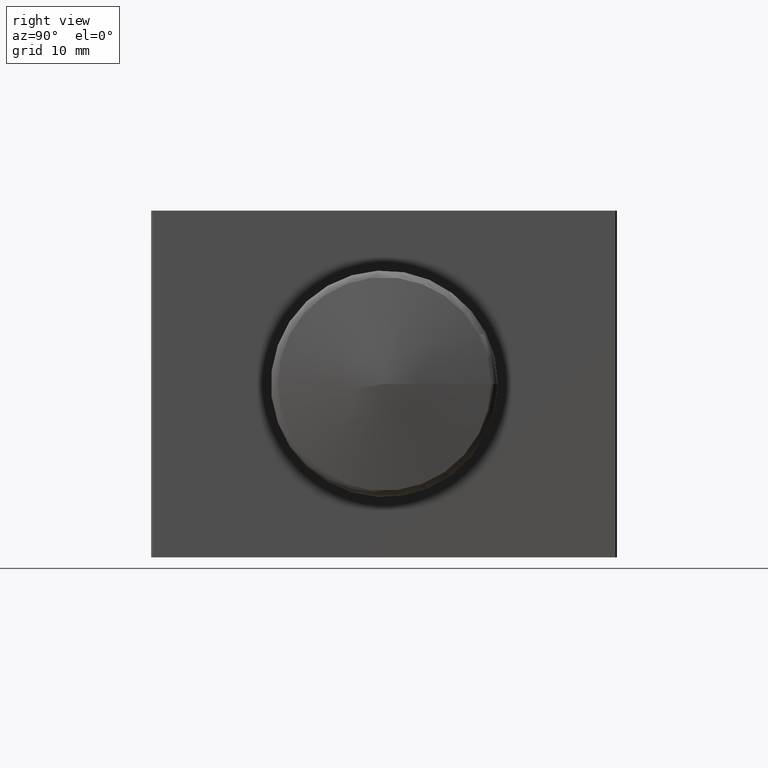
[diagram: clean part render]
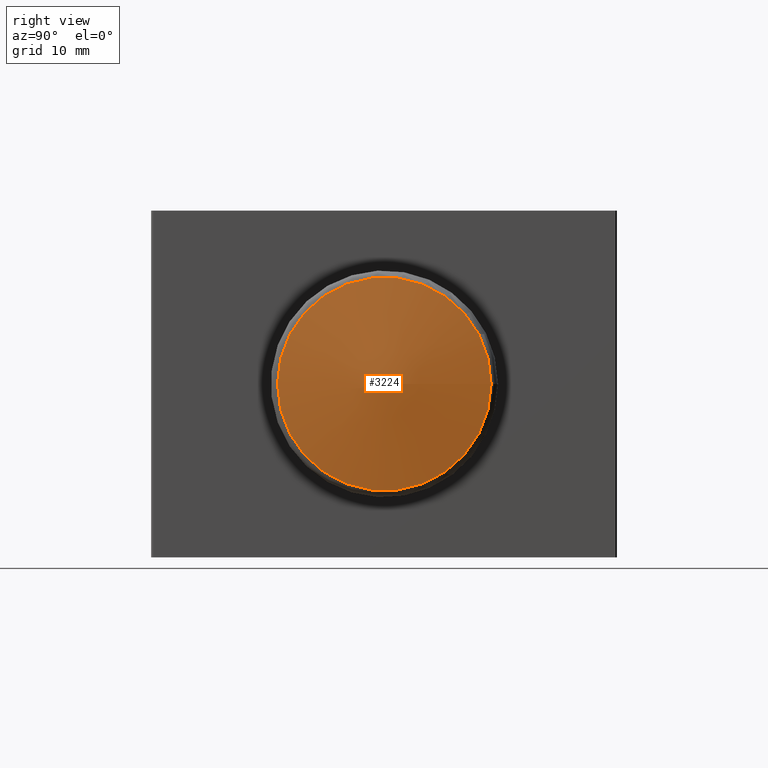
[diagram: same view with one face highlighted and labeled with its STEP entity id]
A machine part, right view. The second image highlights one B-rep face of the part: STEP entity #3224.
In plain terms, the highlighted conical surface has half-angle 82.265 deg.
Its self-contained STEP definition (entity closure, byte-faithful):
#3201=CARTESIAN_POINT('',(12.594946192137293,14.234301218064685,0.0));
#3202=VERTEX_POINT('',#3201);
#3203=CARTESIAN_POINT('',(12.594946192137293,0.374713552126451,0.0));
#3204=DIRECTION('',(1.0,-1.302521E-013,0.0));
#3205=DIRECTION('',(1.302521E-013,1.0,0.0));
#3206=AXIS2_PLACEMENT_3D('',#3203,#3204,#3205);
#3207=CIRCLE('',#3206,13.859587665938234);
#3208=EDGE_CURVE('',#3202,#3202,#3207,.T.);
#3216=CARTESIAN_POINT('',(13.536174556547365,0.374713552126451,0.0));
#3217=DIRECTION('',(-1.0,0.0,0.0));
#3218=DIRECTION('',(1.302521E-013,1.0,0.0));
#3219=AXIS2_PLACEMENT_3D('',#3216,#3217,#3218);
#3220=CONICAL_SURFACE('',#3219,6.929793832969096,82.265222708577511);
#3221=ORIENTED_EDGE('',*,*,#3208,.T.);
#3222=EDGE_LOOP('',(#3221));
#3223=FACE_OUTER_BOUND('',#3222,.T.);
#3224=ADVANCED_FACE('',(#3223),#3220,.T.);